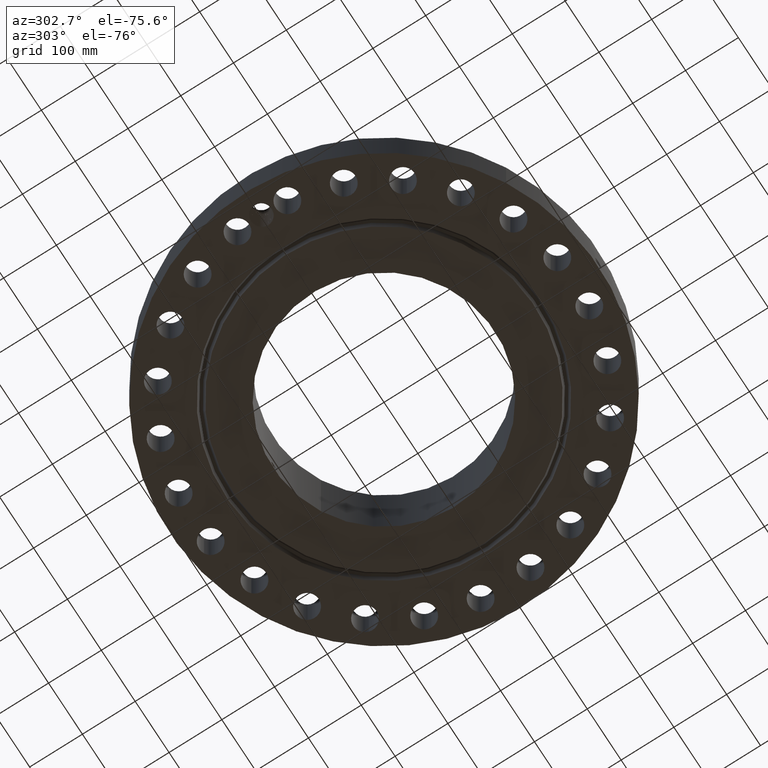
[diagram: clean part render]
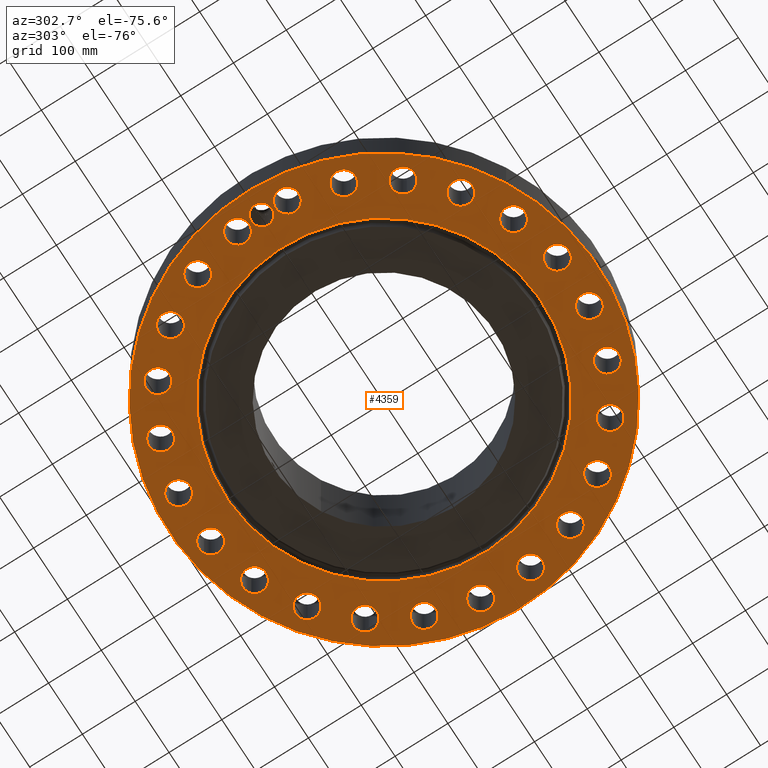
[diagram: same view with one face highlighted and labeled with its STEP entity id]
A machine part, auxiliary view. The second image highlights one B-rep face of the part: STEP entity #4359.
In plain terms, the highlighted planar face has unit normal (0, 0, -1).
Its self-contained STEP definition (entity closure, byte-faithful):
#598=AXIS2_PLACEMENT_3D('Plane Axis2P3D',#595,#596,#597) ;
#3275=AXIS2_PLACEMENT_3D('Circle Axis2P3D',#3273,#3274,$) ;
#3301=AXIS2_PLACEMENT_3D('Circle Axis2P3D',#3299,#3300,$) ;
#3849=AXIS2_PLACEMENT_3D('Circle Axis2P3D',#3847,#3848,$) ;
#3858=AXIS2_PLACEMENT_3D('Circle Axis2P3D',#3856,#3857,$) ;
#3867=AXIS2_PLACEMENT_3D('Circle Axis2P3D',#3865,#3866,$) ;
#3876=AXIS2_PLACEMENT_3D('Circle Axis2P3D',#3874,#3875,$) ;
#3925=AXIS2_PLACEMENT_3D('Circle Axis2P3D',#3923,#3924,$) ;
#3934=AXIS2_PLACEMENT_3D('Circle Axis2P3D',#3932,#3933,$) ;
#3943=AXIS2_PLACEMENT_3D('Circle Axis2P3D',#3941,#3942,$) ;
#3952=AXIS2_PLACEMENT_3D('Circle Axis2P3D',#3950,#3951,$) ;
#3961=AXIS2_PLACEMENT_3D('Circle Axis2P3D',#3959,#3960,$) ;
#3970=AXIS2_PLACEMENT_3D('Circle Axis2P3D',#3968,#3969,$) ;
#3979=AXIS2_PLACEMENT_3D('Circle Axis2P3D',#3977,#3978,$) ;
#3988=AXIS2_PLACEMENT_3D('Circle Axis2P3D',#3986,#3987,$) ;
#3997=AXIS2_PLACEMENT_3D('Circle Axis2P3D',#3995,#3996,$) ;
#4006=AXIS2_PLACEMENT_3D('Circle Axis2P3D',#4004,#4005,$) ;
#4015=AXIS2_PLACEMENT_3D('Circle Axis2P3D',#4013,#4014,$) ;
#4024=AXIS2_PLACEMENT_3D('Circle Axis2P3D',#4022,#4023,$) ;
#4033=AXIS2_PLACEMENT_3D('Circle Axis2P3D',#4031,#4032,$) ;
#4042=AXIS2_PLACEMENT_3D('Circle Axis2P3D',#4040,#4041,$) ;
#4051=AXIS2_PLACEMENT_3D('Circle Axis2P3D',#4049,#4050,$) ;
#4060=AXIS2_PLACEMENT_3D('Circle Axis2P3D',#4058,#4059,$) ;
#4069=AXIS2_PLACEMENT_3D('Circle Axis2P3D',#4067,#4068,$) ;
#4078=AXIS2_PLACEMENT_3D('Circle Axis2P3D',#4076,#4077,$) ;
#4087=AXIS2_PLACEMENT_3D('Circle Axis2P3D',#4085,#4086,$) ;
#4096=AXIS2_PLACEMENT_3D('Circle Axis2P3D',#4094,#4095,$) ;
#4105=AXIS2_PLACEMENT_3D('Circle Axis2P3D',#4103,#4104,$) ;
#4114=AXIS2_PLACEMENT_3D('Circle Axis2P3D',#4112,#4113,$) ;
#4123=AXIS2_PLACEMENT_3D('Circle Axis2P3D',#4121,#4122,$) ;
#4132=AXIS2_PLACEMENT_3D('Circle Axis2P3D',#4130,#4131,$) ;
#4141=AXIS2_PLACEMENT_3D('Circle Axis2P3D',#4139,#4140,$) ;
#4150=AXIS2_PLACEMENT_3D('Circle Axis2P3D',#4148,#4149,$) ;
#4159=AXIS2_PLACEMENT_3D('Circle Axis2P3D',#4157,#4158,$) ;
#4168=AXIS2_PLACEMENT_3D('Circle Axis2P3D',#4166,#4167,$) ;
#4177=AXIS2_PLACEMENT_3D('Circle Axis2P3D',#4175,#4176,$) ;
#4186=AXIS2_PLACEMENT_3D('Circle Axis2P3D',#4184,#4185,$) ;
#4195=AXIS2_PLACEMENT_3D('Circle Axis2P3D',#4193,#4194,$) ;
#4204=AXIS2_PLACEMENT_3D('Circle Axis2P3D',#4202,#4203,$) ;
#4213=AXIS2_PLACEMENT_3D('Circle Axis2P3D',#4211,#4212,$) ;
#4222=AXIS2_PLACEMENT_3D('Circle Axis2P3D',#4220,#4221,$) ;
#4231=AXIS2_PLACEMENT_3D('Circle Axis2P3D',#4229,#4230,$) ;
#4240=AXIS2_PLACEMENT_3D('Circle Axis2P3D',#4238,#4239,$) ;
#4249=AXIS2_PLACEMENT_3D('Circle Axis2P3D',#4247,#4248,$) ;
#4258=AXIS2_PLACEMENT_3D('Circle Axis2P3D',#4256,#4257,$) ;
#4267=AXIS2_PLACEMENT_3D('Circle Axis2P3D',#4265,#4266,$) ;
#4276=AXIS2_PLACEMENT_3D('Circle Axis2P3D',#4274,#4275,$) ;
#4285=AXIS2_PLACEMENT_3D('Circle Axis2P3D',#4283,#4284,$) ;
#4294=AXIS2_PLACEMENT_3D('Circle Axis2P3D',#4292,#4293,$) ;
#4303=AXIS2_PLACEMENT_3D('Circle Axis2P3D',#4301,#4302,$) ;
#4312=AXIS2_PLACEMENT_3D('Circle Axis2P3D',#4310,#4311,$) ;
#4321=AXIS2_PLACEMENT_3D('Circle Axis2P3D',#4319,#4320,$) ;
#4330=AXIS2_PLACEMENT_3D('Circle Axis2P3D',#4328,#4329,$) ;
#4339=AXIS2_PLACEMENT_3D('Circle Axis2P3D',#4337,#4338,$) ;
#4348=AXIS2_PLACEMENT_3D('Circle Axis2P3D',#4346,#4347,$) ;
#595=CARTESIAN_POINT('Axis2P3D Location',(0.,8.25000000003,0.)) ;
#3273=CARTESIAN_POINT('Axis2P3D Location',(0.,0.,0.)) ;
#3277=CARTESIAN_POINT('Vertex',(-5.64068117447,10.325197632,0.)) ;
#3279=CARTESIAN_POINT('Vertex',(5.64068117447,-10.325197632,-1.95818864186E-015)) ;
#3299=CARTESIAN_POINT('Axis2P3D Location',(0.,0.,0.)) ;
#3847=CARTESIAN_POINT('Axis2P3D Location',(0.,0.,0.)) ;
#3851=CARTESIAN_POINT('Vertex',(-7.6708086177,-14.0413209903,2.23792987641E-015)) ;
#3853=CARTESIAN_POINT('Vertex',(7.6708086177,14.0413209903,2.23792987641E-015)) ;
#3856=CARTESIAN_POINT('Axis2P3D Location',(0.,0.,0.)) ;
#3865=CARTESIAN_POINT('Axis2P3D Location',(-14.2500000001,-1.1189649382E-015,0.)) ;
#3869=CARTESIAN_POINT('Vertex',(-14.920692473,0.36640096788,0.)) ;
#3871=CARTESIAN_POINT('Vertex',(-14.1094306095,0.75121122791,0.)) ;
#3874=CARTESIAN_POINT('Axis2P3D Location',(-14.2500000001,-1.1189649382E-015,0.)) ;
#3878=CARTESIAN_POINT('Vertex',(-14.1097536316,-0.751271601116,0.)) ;
#3882=CARTESIAN_POINT('Control Point',(-13.4375000001,-6.71378962923E-015,0.)) ;
#3883=CARTESIAN_POINT('Control Point',(-13.4405034542,-0.0700819285854,0.)) ;
#3884=CARTESIAN_POINT('Control Point',(-13.4510704131,-0.139688741525,0.)) ;
#3885=CARTESIAN_POINT('Control Point',(-13.469126324,-0.207699956184,0.)) ;
#3886=CARTESIAN_POINT('Control Point',(-13.5196047882,-0.338419013294,0.)) ;
#3887=CARTESIAN_POINT('Control Point',(-13.5966628751,-0.454573058828,0.)) ;
#3888=CARTESIAN_POINT('Control Point',(-13.6413276843,-0.508069708978,0.)) ;
#3889=CARTESIAN_POINT('Control Point',(-13.7414180917,-0.604187066676,0.)) ;
#3890=CARTESIAN_POINT('Control Point',(-13.859436652,-0.67589715356,0.)) ;
#3891=CARTESIAN_POINT('Control Point',(-13.9220591025,-0.705005531059,0.)) ;
#3892=CARTESIAN_POINT('Control Point',(-13.9980973818,-0.73053470586,0.)) ;
#3893=CARTESIAN_POINT('Control Point',(-14.0761243261,-0.745926395749,0.)) ;
#3894=CARTESIAN_POINT('Control Point',(-14.0873054263,-0.747917097955,0.)) ;
#3895=CARTESIAN_POINT('Control Point',(-14.098516914,-0.749699054026,0.)) ;
#3896=CARTESIAN_POINT('Control Point',(-14.1097536316,-0.751271601116,0.)) ;
#3897=CARTESIAN_POINT('Vertex',(-13.4375000001,-6.71378962923E-015,0.)) ;
#3901=CARTESIAN_POINT('Control Point',(-13.4375000001,-6.71378962923E-015,0.)) ;
#3902=CARTESIAN_POINT('Control Point',(-13.4405027017,0.0700643704424,0.)) ;
#3903=CARTESIAN_POINT('Control Point',(-13.451065102,0.13965391656,0.)) ;
#3904=CARTESIAN_POINT('Control Point',(-13.4691221647,0.207669665977,0.)) ;
#3905=CARTESIAN_POINT('Control Point',(-13.5195963373,0.338375346098,0.)) ;
#3906=CARTESIAN_POINT('Control Point',(-13.5966936542,0.454596623603,0.)) ;
#3907=CARTESIAN_POINT('Control Point',(-13.6413728868,0.508119610528,0.)) ;
#3908=CARTESIAN_POINT('Control Point',(-13.7248060198,0.588234336415,0.)) ;
#3909=CARTESIAN_POINT('Control Point',(-13.8207317134,0.651398172347,0.)) ;
#3910=CARTESIAN_POINT('Control Point',(-13.860824708,0.673749756226,0.)) ;
#3911=CARTESIAN_POINT('Control Point',(-13.9334162356,0.707459416638,0.)) ;
#3912=CARTESIAN_POINT('Control Point',(-14.009437181,0.731460646308,0.)) ;
#3913=CARTESIAN_POINT('Control Point',(-14.0424616597,0.73990565866,0.)) ;
#3914=CARTESIAN_POINT('Control Point',(-14.0758393229,0.746494356371,0.)) ;
#3915=CARTESIAN_POINT('Control Point',(-14.1094306095,0.75121122791,0.)) ;
#3923=CARTESIAN_POINT('Axis2P3D Location',(14.1280892746,-1.85999823914,0.)) ;
#3927=CARTESIAN_POINT('Vertex',(14.8959740163,-2.27949558542,0.)) ;
#3929=CARTESIAN_POINT('Vertex',(13.360204533,-1.44050089286,0.)) ;
#3932=CARTESIAN_POINT('Axis2P3D Location',(14.1280892746,-1.85999823914,0.)) ;
#3941=CARTESIAN_POINT('Axis2P3D Location',(13.1652833383,-5.45323891122,0.)) ;
#3945=CARTESIAN_POINT('Vertex',(12.5321375373,-4.84929239481,0.)) ;
#3947=CARTESIAN_POINT('Vertex',(13.7984291393,-6.05718542764,0.)) ;
#3950=CARTESIAN_POINT('Axis2P3D Location',(13.1652833383,-5.45323891122,0.)) ;
#3959=CARTESIAN_POINT('Axis2P3D Location',(11.3052850992,-8.67485036341,0.)) ;
#3963=CARTESIAN_POINT('Vertex',(10.8500260789,-7.92761263388,0.)) ;
#3965=CARTESIAN_POINT('Vertex',(11.7605441195,-9.42208809294,0.)) ;
#3968=CARTESIAN_POINT('Axis2P3D Location',(11.3052850992,-8.67485036341,0.)) ;
#3977=CARTESIAN_POINT('Axis2P3D Location',(8.67485036341,-11.3052850992,0.)) ;
#3981=CARTESIAN_POINT('Vertex',(8.42850327366,-10.465679173,0.)) ;
#3983=CARTESIAN_POINT('Vertex',(8.92119745316,-12.1448910254,0.)) ;
#3986=CARTESIAN_POINT('Axis2P3D Location',(8.67485036341,-11.3052850992,0.)) ;
#3995=CARTESIAN_POINT('Axis2P3D Location',(5.45323891122,-13.1652833383,0.)) ;
#3999=CARTESIAN_POINT('Vertex',(5.43259189909,-12.2905269717,0.)) ;
#4001=CARTESIAN_POINT('Vertex',(5.47388592335,-14.0400397049,0.)) ;
#4004=CARTESIAN_POINT('Axis2P3D Location',(5.45323891122,-13.1652833383,0.)) ;
#4013=CARTESIAN_POINT('Axis2P3D Location',(1.85999823914,-14.1280892746,0.)) ;
#4017=CARTESIAN_POINT('Vertex',(2.06645836439,-13.2777956685,0.)) ;
#4019=CARTESIAN_POINT('Vertex',(1.6535381139,-14.9783828808,0.)) ;
#4022=CARTESIAN_POINT('Axis2P3D Location',(1.85999823914,-14.1280892746,0.)) ;
#4031=CARTESIAN_POINT('Axis2P3D Location',(-1.85999823914,-14.1280892746,0.)) ;
#4035=CARTESIAN_POINT('Vertex',(-1.44050089286,-13.360204533,0.)) ;
#4037=CARTESIAN_POINT('Vertex',(-2.27949558542,-14.8959740163,0.)) ;
#4040=CARTESIAN_POINT('Axis2P3D Location',(-1.85999823914,-14.1280892746,0.)) ;
#4049=CARTESIAN_POINT('Axis2P3D Location',(-5.45323891122,-13.1652833383,0.)) ;
#4053=CARTESIAN_POINT('Vertex',(-4.84929239481,-12.5321375373,0.)) ;
#4055=CARTESIAN_POINT('Vertex',(-6.05718542764,-13.7984291393,-2.23792987641E-015)) ;
#4058=CARTESIAN_POINT('Axis2P3D Location',(-5.45323891122,-13.1652833383,0.)) ;
#4067=CARTESIAN_POINT('Axis2P3D Location',(-8.67485036341,-11.3052850992,0.)) ;
#4071=CARTESIAN_POINT('Vertex',(-7.92761263388,-10.8500260789,0.)) ;
#4073=CARTESIAN_POINT('Vertex',(-9.42208809294,-11.7605441195,-3.35689481461E-015)) ;
#4076=CARTESIAN_POINT('Axis2P3D Location',(-8.67485036341,-11.3052850992,0.)) ;
#4085=CARTESIAN_POINT('Axis2P3D Location',(-11.3052850992,-8.67485036341,0.)) ;
#4089=CARTESIAN_POINT('Vertex',(-10.465679173,-8.42850327366,0.)) ;
#4091=CARTESIAN_POINT('Vertex',(-12.1448910254,-8.92119745316,0.)) ;
#4094=CARTESIAN_POINT('Axis2P3D Location',(-11.3052850992,-8.67485036341,0.)) ;
#4103=CARTESIAN_POINT('Axis2P3D Location',(-13.1652833383,-5.45323891122,0.)) ;
#4107=CARTESIAN_POINT('Vertex',(-12.2905269717,-5.43259189909,0.)) ;
#4109=CARTESIAN_POINT('Vertex',(-14.0400397049,-5.47388592335,0.)) ;
#4112=CARTESIAN_POINT('Axis2P3D Location',(-13.1652833383,-5.45323891122,0.)) ;
#4121=CARTESIAN_POINT('Axis2P3D Location',(-14.1280892746,-1.85999823914,0.)) ;
#4125=CARTESIAN_POINT('Vertex',(-13.2777956685,-2.06645836439,0.)) ;
#4127=CARTESIAN_POINT('Vertex',(-14.9783828808,-1.6535381139,0.)) ;
#4130=CARTESIAN_POINT('Axis2P3D Location',(-14.1280892746,-1.85999823914,0.)) ;
#4139=CARTESIAN_POINT('Axis2P3D Location',(-14.1280892746,1.85999823914,0.)) ;
#4143=CARTESIAN_POINT('Vertex',(-13.360204533,1.44050089286,0.)) ;
#4145=CARTESIAN_POINT('Vertex',(-14.8959740163,2.27949558542,0.)) ;
#4148=CARTESIAN_POINT('Axis2P3D Location',(-14.1280892746,1.85999823914,0.)) ;
#4157=CARTESIAN_POINT('Axis2P3D Location',(-13.1652833383,5.45323891122,0.)) ;
#4161=CARTESIAN_POINT('Vertex',(-12.5321375373,4.84929239481,0.)) ;
#4163=CARTESIAN_POINT('Vertex',(-13.7984291393,6.05718542764,0.)) ;
#4166=CARTESIAN_POINT('Axis2P3D Location',(-13.1652833383,5.45323891122,0.)) ;
#4175=CARTESIAN_POINT('Axis2P3D Location',(-11.3052850992,8.67485036341,0.)) ;
#4179=CARTESIAN_POINT('Vertex',(-10.8500260789,7.92761263388,0.)) ;
#4181=CARTESIAN_POINT('Vertex',(-11.7605441195,9.42208809294,0.)) ;
#4184=CARTESIAN_POINT('Axis2P3D Location',(-11.3052850992,8.67485036341,0.)) ;
#4193=CARTESIAN_POINT('Axis2P3D Location',(-8.67485036341,11.3052850992,0.)) ;
#4197=CARTESIAN_POINT('Vertex',(-8.42850327366,10.465679173,0.)) ;
#4199=CARTESIAN_POINT('Vertex',(-8.92119745316,12.1448910254,0.)) ;
#4202=CARTESIAN_POINT('Axis2P3D Location',(-8.67485036341,11.3052850992,0.)) ;
#4211=CARTESIAN_POINT('Axis2P3D Location',(-5.45323891122,13.1652833383,0.)) ;
#4215=CARTESIAN_POINT('Vertex',(-5.43259189909,12.2905269717,0.)) ;
#4217=CARTESIAN_POINT('Vertex',(-5.47388592335,14.0400397049,0.)) ;
#4220=CARTESIAN_POINT('Axis2P3D Location',(-5.45323891122,13.1652833383,0.)) ;
#4229=CARTESIAN_POINT('Axis2P3D Location',(-1.85999823914,14.1280892746,0.)) ;
#4233=CARTESIAN_POINT('Vertex',(-2.06645836439,13.2777956685,0.)) ;
#4235=CARTESIAN_POINT('Vertex',(-1.6535381139,14.9783828808,0.)) ;
#4238=CARTESIAN_POINT('Axis2P3D Location',(-1.85999823914,14.1280892746,0.)) ;
#4247=CARTESIAN_POINT('Axis2P3D Location',(1.85999823914,14.1280892746,0.)) ;
#4251=CARTESIAN_POINT('Vertex',(1.44050089286,13.360204533,0.)) ;
#4253=CARTESIAN_POINT('Vertex',(2.27949558542,14.8959740163,0.)) ;
#4256=CARTESIAN_POINT('Axis2P3D Location',(1.85999823914,14.1280892746,0.)) ;
#4265=CARTESIAN_POINT('Axis2P3D Location',(5.45323891122,13.1652833383,0.)) ;
#4269=CARTESIAN_POINT('Vertex',(4.84929239481,12.5321375373,0.)) ;
#4271=CARTESIAN_POINT('Vertex',(6.05718542764,13.7984291393,0.)) ;
#4274=CARTESIAN_POINT('Axis2P3D Location',(5.45323891122,13.1652833383,0.)) ;
#4283=CARTESIAN_POINT('Axis2P3D Location',(8.67485036341,11.3052850992,0.)) ;
#4287=CARTESIAN_POINT('Vertex',(7.92761263388,10.8500260789,0.)) ;
#4289=CARTESIAN_POINT('Vertex',(9.42208809294,11.7605441195,0.)) ;
#4292=CARTESIAN_POINT('Axis2P3D Location',(8.67485036341,11.3052850992,0.)) ;
#4301=CARTESIAN_POINT('Axis2P3D Location',(11.3052850992,8.67485036341,0.)) ;
#4305=CARTESIAN_POINT('Vertex',(10.465679173,8.42850327366,0.)) ;
#4307=CARTESIAN_POINT('Vertex',(12.1448910254,8.92119745316,0.)) ;
#4310=CARTESIAN_POINT('Axis2P3D Location',(11.3052850992,8.67485036341,0.)) ;
#4319=CARTESIAN_POINT('Axis2P3D Location',(13.1652833383,5.45323891122,0.)) ;
#4323=CARTESIAN_POINT('Vertex',(12.2905269717,5.43259189909,0.)) ;
#4325=CARTESIAN_POINT('Vertex',(14.0400397049,5.47388592335,0.)) ;
#4328=CARTESIAN_POINT('Axis2P3D Location',(13.1652833383,5.45323891122,0.)) ;
#4337=CARTESIAN_POINT('Axis2P3D Location',(14.1280892746,1.85999823914,0.)) ;
#4341=CARTESIAN_POINT('Vertex',(13.2777956685,2.06645836439,0.)) ;
#4343=CARTESIAN_POINT('Vertex',(14.9783828808,1.6535381139,0.)) ;
#4346=CARTESIAN_POINT('Axis2P3D Location',(14.1280892746,1.85999823914,0.)) ;
#596=DIRECTION('Axis2P3D Direction',(0.,0.,-0.0393700787402)) ;
#597=DIRECTION('Axis2P3D XDirection',(0.0393700787402,0.,0.)) ;
#3274=DIRECTION('Axis2P3D Direction',(0.,0.,-0.0393700787402)) ;
#3300=DIRECTION('Axis2P3D Direction',(0.,0.,-0.0393700787402)) ;
#3848=DIRECTION('Axis2P3D Direction',(0.,0.,-0.0393700787402)) ;
#3857=DIRECTION('Axis2P3D Direction',(0.,0.,-0.0393700787402)) ;
#3866=DIRECTION('Axis2P3D Direction',(0.,0.,-0.0393700787402)) ;
#3875=DIRECTION('Axis2P3D Direction',(0.,0.,-0.0393700787402)) ;
#3924=DIRECTION('Axis2P3D Direction',(0.,0.,-0.0393700787402)) ;
#3933=DIRECTION('Axis2P3D Direction',(0.,0.,-0.0393700787402)) ;
#3942=DIRECTION('Axis2P3D Direction',(0.,0.,-0.0393700787402)) ;
#3951=DIRECTION('Axis2P3D Direction',(0.,0.,-0.0393700787402)) ;
#3960=DIRECTION('Axis2P3D Direction',(0.,0.,-0.0393700787402)) ;
#3969=DIRECTION('Axis2P3D Direction',(0.,0.,-0.0393700787402)) ;
#3978=DIRECTION('Axis2P3D Direction',(0.,0.,-0.0393700787402)) ;
#3987=DIRECTION('Axis2P3D Direction',(0.,0.,-0.0393700787402)) ;
#3996=DIRECTION('Axis2P3D Direction',(0.,0.,-0.0393700787402)) ;
#4005=DIRECTION('Axis2P3D Direction',(0.,0.,-0.0393700787402)) ;
#4014=DIRECTION('Axis2P3D Direction',(0.,0.,-0.0393700787402)) ;
#4023=DIRECTION('Axis2P3D Direction',(0.,0.,-0.0393700787402)) ;
#4032=DIRECTION('Axis2P3D Direction',(0.,0.,-0.0393700787402)) ;
#4041=DIRECTION('Axis2P3D Direction',(0.,0.,-0.0393700787402)) ;
#4050=DIRECTION('Axis2P3D Direction',(0.,0.,-0.0393700787402)) ;
#4059=DIRECTION('Axis2P3D Direction',(0.,0.,-0.0393700787402)) ;
#4068=DIRECTION('Axis2P3D Direction',(0.,0.,-0.0393700787402)) ;
#4077=DIRECTION('Axis2P3D Direction',(0.,0.,-0.0393700787402)) ;
#4086=DIRECTION('Axis2P3D Direction',(0.,0.,-0.0393700787402)) ;
#4095=DIRECTION('Axis2P3D Direction',(0.,0.,-0.0393700787402)) ;
#4104=DIRECTION('Axis2P3D Direction',(0.,0.,-0.0393700787402)) ;
#4113=DIRECTION('Axis2P3D Direction',(0.,0.,-0.0393700787402)) ;
#4122=DIRECTION('Axis2P3D Direction',(0.,0.,-0.0393700787402)) ;
#4131=DIRECTION('Axis2P3D Direction',(0.,0.,-0.0393700787402)) ;
#4140=DIRECTION('Axis2P3D Direction',(0.,0.,-0.0393700787402)) ;
#4149=DIRECTION('Axis2P3D Direction',(0.,0.,-0.0393700787402)) ;
#4158=DIRECTION('Axis2P3D Direction',(0.,0.,-0.0393700787402)) ;
#4167=DIRECTION('Axis2P3D Direction',(0.,0.,-0.0393700787402)) ;
#4176=DIRECTION('Axis2P3D Direction',(0.,0.,-0.0393700787402)) ;
#4185=DIRECTION('Axis2P3D Direction',(0.,0.,-0.0393700787402)) ;
#4194=DIRECTION('Axis2P3D Direction',(0.,0.,-0.0393700787402)) ;
#4203=DIRECTION('Axis2P3D Direction',(0.,0.,-0.0393700787402)) ;
#4212=DIRECTION('Axis2P3D Direction',(0.,0.,-0.0393700787402)) ;
#4221=DIRECTION('Axis2P3D Direction',(0.,0.,-0.0393700787402)) ;
#4230=DIRECTION('Axis2P3D Direction',(0.,0.,-0.0393700787402)) ;
#4239=DIRECTION('Axis2P3D Direction',(0.,0.,-0.0393700787402)) ;
#4248=DIRECTION('Axis2P3D Direction',(0.,0.,-0.0393700787402)) ;
#4257=DIRECTION('Axis2P3D Direction',(0.,0.,-0.0393700787402)) ;
#4266=DIRECTION('Axis2P3D Direction',(0.,0.,-0.0393700787402)) ;
#4275=DIRECTION('Axis2P3D Direction',(0.,0.,-0.0393700787402)) ;
#4284=DIRECTION('Axis2P3D Direction',(0.,0.,-0.0393700787402)) ;
#4293=DIRECTION('Axis2P3D Direction',(0.,0.,-0.0393700787402)) ;
#4302=DIRECTION('Axis2P3D Direction',(0.,0.,-0.0393700787402)) ;
#4311=DIRECTION('Axis2P3D Direction',(0.,0.,-0.0393700787402)) ;
#4320=DIRECTION('Axis2P3D Direction',(0.,0.,-0.0393700787402)) ;
#4329=DIRECTION('Axis2P3D Direction',(0.,0.,-0.0393700787402)) ;
#4338=DIRECTION('Axis2P3D Direction',(0.,0.,-0.0393700787402)) ;
#4347=DIRECTION('Axis2P3D Direction',(0.,0.,-0.0393700787402)) ;
#3862=ORIENTED_EDGE('',*,*,#3855,.T.) ;
#3863=ORIENTED_EDGE('',*,*,#3860,.T.) ;
#3918=ORIENTED_EDGE('',*,*,#3873,.F.) ;
#3919=ORIENTED_EDGE('',*,*,#3880,.F.) ;
#3920=ORIENTED_EDGE('',*,*,#3899,.F.) ;
#3921=ORIENTED_EDGE('',*,*,#3916,.T.) ;
#3938=ORIENTED_EDGE('',*,*,#3931,.F.) ;
#3939=ORIENTED_EDGE('',*,*,#3936,.F.) ;
#3956=ORIENTED_EDGE('',*,*,#3949,.F.) ;
#3957=ORIENTED_EDGE('',*,*,#3954,.F.) ;
#3974=ORIENTED_EDGE('',*,*,#3967,.F.) ;
#3975=ORIENTED_EDGE('',*,*,#3972,.F.) ;
#3992=ORIENTED_EDGE('',*,*,#3985,.F.) ;
#3993=ORIENTED_EDGE('',*,*,#3990,.F.) ;
#4010=ORIENTED_EDGE('',*,*,#4003,.F.) ;
#4011=ORIENTED_EDGE('',*,*,#4008,.F.) ;
#4028=ORIENTED_EDGE('',*,*,#4021,.F.) ;
#4029=ORIENTED_EDGE('',*,*,#4026,.F.) ;
#4046=ORIENTED_EDGE('',*,*,#4039,.F.) ;
#4047=ORIENTED_EDGE('',*,*,#4044,.F.) ;
#4064=ORIENTED_EDGE('',*,*,#4057,.F.) ;
#4065=ORIENTED_EDGE('',*,*,#4062,.F.) ;
#4082=ORIENTED_EDGE('',*,*,#4075,.F.) ;
#4083=ORIENTED_EDGE('',*,*,#4080,.F.) ;
#4100=ORIENTED_EDGE('',*,*,#4093,.F.) ;
#4101=ORIENTED_EDGE('',*,*,#4098,.F.) ;
#4118=ORIENTED_EDGE('',*,*,#4111,.F.) ;
#4119=ORIENTED_EDGE('',*,*,#4116,.F.) ;
#4136=ORIENTED_EDGE('',*,*,#4129,.F.) ;
#4137=ORIENTED_EDGE('',*,*,#4134,.F.) ;
#4154=ORIENTED_EDGE('',*,*,#4147,.F.) ;
#4155=ORIENTED_EDGE('',*,*,#4152,.F.) ;
#4172=ORIENTED_EDGE('',*,*,#4165,.F.) ;
#4173=ORIENTED_EDGE('',*,*,#4170,.F.) ;
#4190=ORIENTED_EDGE('',*,*,#4183,.F.) ;
#4191=ORIENTED_EDGE('',*,*,#4188,.F.) ;
#4208=ORIENTED_EDGE('',*,*,#4201,.F.) ;
#4209=ORIENTED_EDGE('',*,*,#4206,.F.) ;
#4226=ORIENTED_EDGE('',*,*,#4219,.F.) ;
#4227=ORIENTED_EDGE('',*,*,#4224,.F.) ;
#4244=ORIENTED_EDGE('',*,*,#4237,.F.) ;
#4245=ORIENTED_EDGE('',*,*,#4242,.F.) ;
#4262=ORIENTED_EDGE('',*,*,#4255,.F.) ;
#4263=ORIENTED_EDGE('',*,*,#4260,.F.) ;
#4280=ORIENTED_EDGE('',*,*,#4273,.F.) ;
#4281=ORIENTED_EDGE('',*,*,#4278,.F.) ;
#4298=ORIENTED_EDGE('',*,*,#4291,.F.) ;
#4299=ORIENTED_EDGE('',*,*,#4296,.F.) ;
#4316=ORIENTED_EDGE('',*,*,#4309,.F.) ;
#4317=ORIENTED_EDGE('',*,*,#4314,.F.) ;
#4334=ORIENTED_EDGE('',*,*,#4327,.F.) ;
#4335=ORIENTED_EDGE('',*,*,#4332,.F.) ;
#4352=ORIENTED_EDGE('',*,*,#4345,.F.) ;
#4353=ORIENTED_EDGE('',*,*,#4350,.F.) ;
#4356=ORIENTED_EDGE('',*,*,#3303,.F.) ;
#4357=ORIENTED_EDGE('',*,*,#3281,.F.) ;
#3922=FACE_BOUND('',#3917,.T.) ;
#3940=FACE_BOUND('',#3937,.T.) ;
#3958=FACE_BOUND('',#3955,.T.) ;
#3976=FACE_BOUND('',#3973,.T.) ;
#3994=FACE_BOUND('',#3991,.T.) ;
#4012=FACE_BOUND('',#4009,.T.) ;
#4030=FACE_BOUND('',#4027,.T.) ;
#4048=FACE_BOUND('',#4045,.T.) ;
#4066=FACE_BOUND('',#4063,.T.) ;
#4084=FACE_BOUND('',#4081,.T.) ;
#4102=FACE_BOUND('',#4099,.T.) ;
#4120=FACE_BOUND('',#4117,.T.) ;
#4138=FACE_BOUND('',#4135,.T.) ;
#4156=FACE_BOUND('',#4153,.T.) ;
#4174=FACE_BOUND('',#4171,.T.) ;
#4192=FACE_BOUND('',#4189,.T.) ;
#4210=FACE_BOUND('',#4207,.T.) ;
#4228=FACE_BOUND('',#4225,.T.) ;
#4246=FACE_BOUND('',#4243,.T.) ;
#4264=FACE_BOUND('',#4261,.T.) ;
#4282=FACE_BOUND('',#4279,.T.) ;
#4300=FACE_BOUND('',#4297,.T.) ;
#4318=FACE_BOUND('',#4315,.T.) ;
#4336=FACE_BOUND('',#4333,.T.) ;
#4354=FACE_BOUND('',#4351,.T.) ;
#4358=FACE_BOUND('',#4355,.T.) ;
#4359=ADVANCED_FACE('PartBody',(#3864,#3922,#3940,#3958,#3976,#3994,#4012,#4030,#4048,#4066,#4084,#4102,#4120,#4138,#4156,#4174,#4192,#4210,#4228,#4246,#4264,#4282,#4300,#4318,#4336,#4354,#4358),#599,.T.) ;
#3881=B_SPLINE_CURVE_WITH_KNOTS('',5,(#3882,#3883,#3884,#3885,#3886,#3887,#3888,#3889,#3890,#3891,#3892,#3893,#3894,#3895,#3896),.UNSPECIFIED.,.F.,.U.,(6,3,3,3,6),(0.,12.1980773301,24.4063113114,36.6208961942,38.6564229768),.UNSPECIFIED.) ;
#3900=B_SPLINE_CURVE_WITH_KNOTS('',5,(#3901,#3902,#3903,#3904,#3905,#3906,#3907,#3908,#3909,#3910,#3911,#3912,#3913,#3914,#3915),.UNSPECIFIED.,.F.,.U.,(6,3,3,3,6),(0.,12.1950212556,24.3883261808,32.5133196138,38.5899008977),.UNSPECIFIED.) ;
#3276=CIRCLE('generated circle',#3275,11.7655) ;
#3302=CIRCLE('generated circle',#3301,11.7655) ;
#3850=CIRCLE('generated circle',#3849,16.0000000001) ;
#3859=CIRCLE('generated circle',#3858,16.0000000001) ;
#3868=CIRCLE('generated circle',#3867,0.764250000003) ;
#3877=CIRCLE('generated circle',#3876,0.764250000003) ;
#3926=CIRCLE('generated circle',#3925,0.875000000004) ;
#3935=CIRCLE('generated circle',#3934,0.875000000004) ;
#3944=CIRCLE('generated circle',#3943,0.875000000004) ;
#3953=CIRCLE('generated circle',#3952,0.875000000004) ;
#3962=CIRCLE('generated circle',#3961,0.875000000003) ;
#3971=CIRCLE('generated circle',#3970,0.875000000003) ;
#3980=CIRCLE('generated circle',#3979,0.875000000004) ;
#3989=CIRCLE('generated circle',#3988,0.875000000004) ;
#3998=CIRCLE('generated circle',#3997,0.875000000003) ;
#4007=CIRCLE('generated circle',#4006,0.875000000003) ;
#4016=CIRCLE('generated circle',#4015,0.875000000004) ;
#4025=CIRCLE('generated circle',#4024,0.875000000004) ;
#4034=CIRCLE('generated circle',#4033,0.875000000004) ;
#4043=CIRCLE('generated circle',#4042,0.875000000004) ;
#4052=CIRCLE('generated circle',#4051,0.875000000004) ;
#4061=CIRCLE('generated circle',#4060,0.875000000004) ;
#4070=CIRCLE('generated circle',#4069,0.875000000003) ;
#4079=CIRCLE('generated circle',#4078,0.875000000003) ;
#4088=CIRCLE('generated circle',#4087,0.875000000004) ;
#4097=CIRCLE('generated circle',#4096,0.875000000004) ;
#4106=CIRCLE('generated circle',#4105,0.875000000003) ;
#4115=CIRCLE('generated circle',#4114,0.875000000003) ;
#4124=CIRCLE('generated circle',#4123,0.875000000004) ;
#4133=CIRCLE('generated circle',#4132,0.875000000004) ;
#4142=CIRCLE('generated circle',#4141,0.875000000004) ;
#4151=CIRCLE('generated circle',#4150,0.875000000004) ;
#4160=CIRCLE('generated circle',#4159,0.875000000004) ;
#4169=CIRCLE('generated circle',#4168,0.875000000004) ;
#4178=CIRCLE('generated circle',#4177,0.875000000003) ;
#4187=CIRCLE('generated circle',#4186,0.875000000003) ;
#4196=CIRCLE('generated circle',#4195,0.875000000004) ;
#4205=CIRCLE('generated circle',#4204,0.875000000004) ;
#4214=CIRCLE('generated circle',#4213,0.875000000003) ;
#4223=CIRCLE('generated circle',#4222,0.875000000003) ;
#4232=CIRCLE('generated circle',#4231,0.875000000004) ;
#4241=CIRCLE('generated circle',#4240,0.875000000004) ;
#4250=CIRCLE('generated circle',#4249,0.875000000004) ;
#4259=CIRCLE('generated circle',#4258,0.875000000004) ;
#4268=CIRCLE('generated circle',#4267,0.875000000004) ;
#4277=CIRCLE('generated circle',#4276,0.875000000004) ;
#4286=CIRCLE('generated circle',#4285,0.875000000003) ;
#4295=CIRCLE('generated circle',#4294,0.875000000003) ;
#4304=CIRCLE('generated circle',#4303,0.875000000004) ;
#4313=CIRCLE('generated circle',#4312,0.875000000004) ;
#4322=CIRCLE('generated circle',#4321,0.875000000003) ;
#4331=CIRCLE('generated circle',#4330,0.875000000003) ;
#4340=CIRCLE('generated circle',#4339,0.875000000004) ;
#4349=CIRCLE('generated circle',#4348,0.875000000004) ;
#3281=EDGE_CURVE('',#3278,#3280,#3276,.T.) ;
#3303=EDGE_CURVE('',#3280,#3278,#3302,.T.) ;
#3855=EDGE_CURVE('',#3852,#3854,#3850,.T.) ;
#3860=EDGE_CURVE('',#3854,#3852,#3859,.T.) ;
#3873=EDGE_CURVE('',#3870,#3872,#3868,.T.) ;
#3880=EDGE_CURVE('',#3879,#3870,#3877,.T.) ;
#3899=EDGE_CURVE('',#3898,#3879,#3881,.T.) ;
#3916=EDGE_CURVE('',#3898,#3872,#3900,.T.) ;
#3931=EDGE_CURVE('',#3928,#3930,#3926,.T.) ;
#3936=EDGE_CURVE('',#3930,#3928,#3935,.T.) ;
#3949=EDGE_CURVE('',#3946,#3948,#3944,.T.) ;
#3954=EDGE_CURVE('',#3948,#3946,#3953,.T.) ;
#3967=EDGE_CURVE('',#3964,#3966,#3962,.T.) ;
#3972=EDGE_CURVE('',#3966,#3964,#3971,.T.) ;
#3985=EDGE_CURVE('',#3982,#3984,#3980,.T.) ;
#3990=EDGE_CURVE('',#3984,#3982,#3989,.T.) ;
#4003=EDGE_CURVE('',#4000,#4002,#3998,.T.) ;
#4008=EDGE_CURVE('',#4002,#4000,#4007,.T.) ;
#4021=EDGE_CURVE('',#4018,#4020,#4016,.T.) ;
#4026=EDGE_CURVE('',#4020,#4018,#4025,.T.) ;
#4039=EDGE_CURVE('',#4036,#4038,#4034,.T.) ;
#4044=EDGE_CURVE('',#4038,#4036,#4043,.T.) ;
#4057=EDGE_CURVE('',#4054,#4056,#4052,.T.) ;
#4062=EDGE_CURVE('',#4056,#4054,#4061,.T.) ;
#4075=EDGE_CURVE('',#4072,#4074,#4070,.T.) ;
#4080=EDGE_CURVE('',#4074,#4072,#4079,.T.) ;
#4093=EDGE_CURVE('',#4090,#4092,#4088,.T.) ;
#4098=EDGE_CURVE('',#4092,#4090,#4097,.T.) ;
#4111=EDGE_CURVE('',#4108,#4110,#4106,.T.) ;
#4116=EDGE_CURVE('',#4110,#4108,#4115,.T.) ;
#4129=EDGE_CURVE('',#4126,#4128,#4124,.T.) ;
#4134=EDGE_CURVE('',#4128,#4126,#4133,.T.) ;
#4147=EDGE_CURVE('',#4144,#4146,#4142,.T.) ;
#4152=EDGE_CURVE('',#4146,#4144,#4151,.T.) ;
#4165=EDGE_CURVE('',#4162,#4164,#4160,.T.) ;
#4170=EDGE_CURVE('',#4164,#4162,#4169,.T.) ;
#4183=EDGE_CURVE('',#4180,#4182,#4178,.T.) ;
#4188=EDGE_CURVE('',#4182,#4180,#4187,.T.) ;
#4201=EDGE_CURVE('',#4198,#4200,#4196,.T.) ;
#4206=EDGE_CURVE('',#4200,#4198,#4205,.T.) ;
#4219=EDGE_CURVE('',#4216,#4218,#4214,.T.) ;
#4224=EDGE_CURVE('',#4218,#4216,#4223,.T.) ;
#4237=EDGE_CURVE('',#4234,#4236,#4232,.T.) ;
#4242=EDGE_CURVE('',#4236,#4234,#4241,.T.) ;
#4255=EDGE_CURVE('',#4252,#4254,#4250,.T.) ;
#4260=EDGE_CURVE('',#4254,#4252,#4259,.T.) ;
#4273=EDGE_CURVE('',#4270,#4272,#4268,.T.) ;
#4278=EDGE_CURVE('',#4272,#4270,#4277,.T.) ;
#4291=EDGE_CURVE('',#4288,#4290,#4286,.T.) ;
#4296=EDGE_CURVE('',#4290,#4288,#4295,.T.) ;
#4309=EDGE_CURVE('',#4306,#4308,#4304,.T.) ;
#4314=EDGE_CURVE('',#4308,#4306,#4313,.T.) ;
#4327=EDGE_CURVE('',#4324,#4326,#4322,.T.) ;
#4332=EDGE_CURVE('',#4326,#4324,#4331,.T.) ;
#4345=EDGE_CURVE('',#4342,#4344,#4340,.T.) ;
#4350=EDGE_CURVE('',#4344,#4342,#4349,.T.) ;
#3861=EDGE_LOOP('',(#3862,#3863)) ;
#3917=EDGE_LOOP('',(#3918,#3919,#3920,#3921)) ;
#3937=EDGE_LOOP('',(#3938,#3939)) ;
#3955=EDGE_LOOP('',(#3956,#3957)) ;
#3973=EDGE_LOOP('',(#3974,#3975)) ;
#3991=EDGE_LOOP('',(#3992,#3993)) ;
#4009=EDGE_LOOP('',(#4010,#4011)) ;
#4027=EDGE_LOOP('',(#4028,#4029)) ;
#4045=EDGE_LOOP('',(#4046,#4047)) ;
#4063=EDGE_LOOP('',(#4064,#4065)) ;
#4081=EDGE_LOOP('',(#4082,#4083)) ;
#4099=EDGE_LOOP('',(#4100,#4101)) ;
#4117=EDGE_LOOP('',(#4118,#4119)) ;
#4135=EDGE_LOOP('',(#4136,#4137)) ;
#4153=EDGE_LOOP('',(#4154,#4155)) ;
#4171=EDGE_LOOP('',(#4172,#4173)) ;
#4189=EDGE_LOOP('',(#4190,#4191)) ;
#4207=EDGE_LOOP('',(#4208,#4209)) ;
#4225=EDGE_LOOP('',(#4226,#4227)) ;
#4243=EDGE_LOOP('',(#4244,#4245)) ;
#4261=EDGE_LOOP('',(#4262,#4263)) ;
#4279=EDGE_LOOP('',(#4280,#4281)) ;
#4297=EDGE_LOOP('',(#4298,#4299)) ;
#4315=EDGE_LOOP('',(#4316,#4317)) ;
#4333=EDGE_LOOP('',(#4334,#4335)) ;
#4351=EDGE_LOOP('',(#4352,#4353)) ;
#4355=EDGE_LOOP('',(#4356,#4357)) ;
#3864=FACE_OUTER_BOUND('',#3861,.T.) ;
#599=PLANE('',#598) ;
#3278=VERTEX_POINT('',#3277) ;
#3280=VERTEX_POINT('',#3279) ;
#3852=VERTEX_POINT('',#3851) ;
#3854=VERTEX_POINT('',#3853) ;
#3870=VERTEX_POINT('',#3869) ;
#3872=VERTEX_POINT('',#3871) ;
#3879=VERTEX_POINT('',#3878) ;
#3898=VERTEX_POINT('',#3897) ;
#3928=VERTEX_POINT('',#3927) ;
#3930=VERTEX_POINT('',#3929) ;
#3946=VERTEX_POINT('',#3945) ;
#3948=VERTEX_POINT('',#3947) ;
#3964=VERTEX_POINT('',#3963) ;
#3966=VERTEX_POINT('',#3965) ;
#3982=VERTEX_POINT('',#3981) ;
#3984=VERTEX_POINT('',#3983) ;
#4000=VERTEX_POINT('',#3999) ;
#4002=VERTEX_POINT('',#4001) ;
#4018=VERTEX_POINT('',#4017) ;
#4020=VERTEX_POINT('',#4019) ;
#4036=VERTEX_POINT('',#4035) ;
#4038=VERTEX_POINT('',#4037) ;
#4054=VERTEX_POINT('',#4053) ;
#4056=VERTEX_POINT('',#4055) ;
#4072=VERTEX_POINT('',#4071) ;
#4074=VERTEX_POINT('',#4073) ;
#4090=VERTEX_POINT('',#4089) ;
#4092=VERTEX_POINT('',#4091) ;
#4108=VERTEX_POINT('',#4107) ;
#4110=VERTEX_POINT('',#4109) ;
#4126=VERTEX_POINT('',#4125) ;
#4128=VERTEX_POINT('',#4127) ;
#4144=VERTEX_POINT('',#4143) ;
#4146=VERTEX_POINT('',#4145) ;
#4162=VERTEX_POINT('',#4161) ;
#4164=VERTEX_POINT('',#4163) ;
#4180=VERTEX_POINT('',#4179) ;
#4182=VERTEX_POINT('',#4181) ;
#4198=VERTEX_POINT('',#4197) ;
#4200=VERTEX_POINT('',#4199) ;
#4216=VERTEX_POINT('',#4215) ;
#4218=VERTEX_POINT('',#4217) ;
#4234=VERTEX_POINT('',#4233) ;
#4236=VERTEX_POINT('',#4235) ;
#4252=VERTEX_POINT('',#4251) ;
#4254=VERTEX_POINT('',#4253) ;
#4270=VERTEX_POINT('',#4269) ;
#4272=VERTEX_POINT('',#4271) ;
#4288=VERTEX_POINT('',#4287) ;
#4290=VERTEX_POINT('',#4289) ;
#4306=VERTEX_POINT('',#4305) ;
#4308=VERTEX_POINT('',#4307) ;
#4324=VERTEX_POINT('',#4323) ;
#4326=VERTEX_POINT('',#4325) ;
#4342=VERTEX_POINT('',#4341) ;
#4344=VERTEX_POINT('',#4343) ;